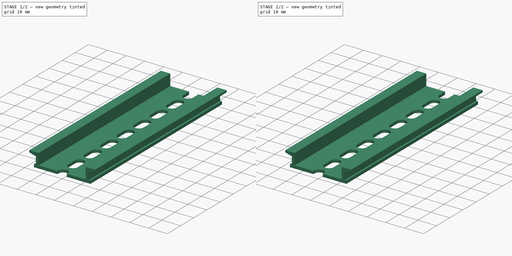
[diagram: build sequence overview — one tinted view per stage of 2, left to right]
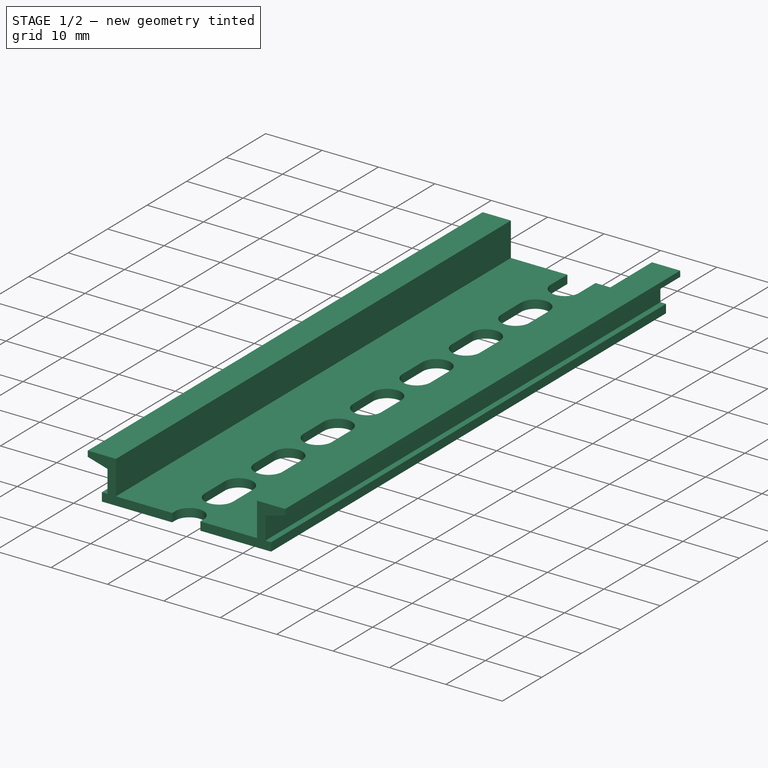
[diagram: stage 1 of 2 — iso view after this stage's code; geometry added in this stage tinted green]
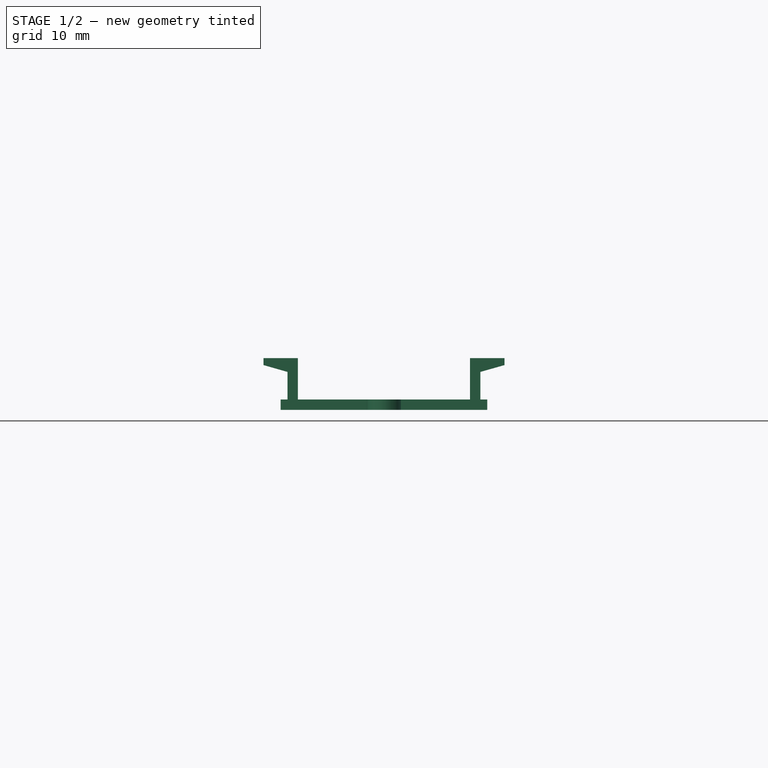
[diagram: stage 1 of 2 — front view after this stage's code; geometry added in this stage tinted green]
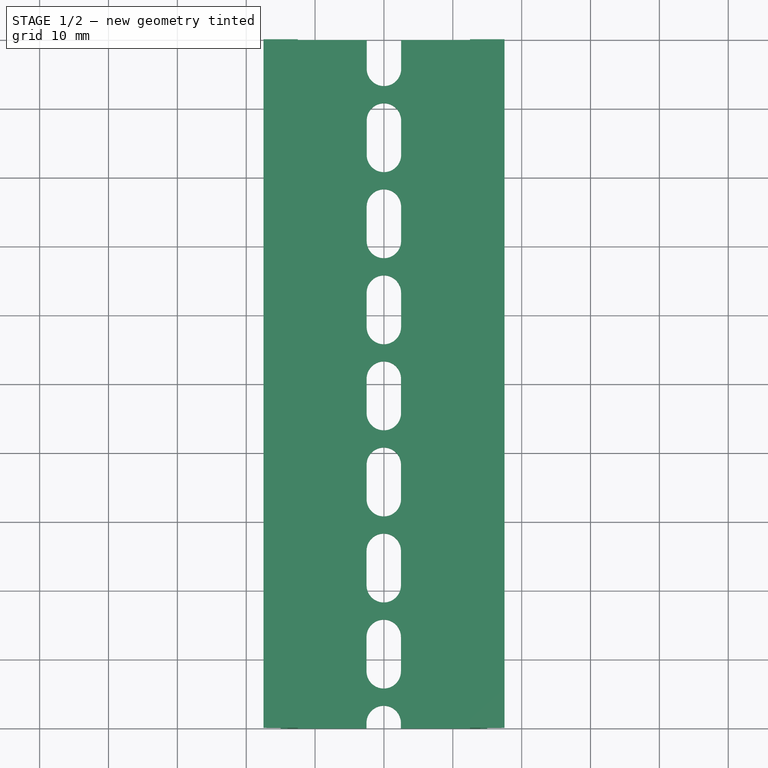
[diagram: stage 1 of 2 — top view after this stage's code; geometry added in this stage tinted green]
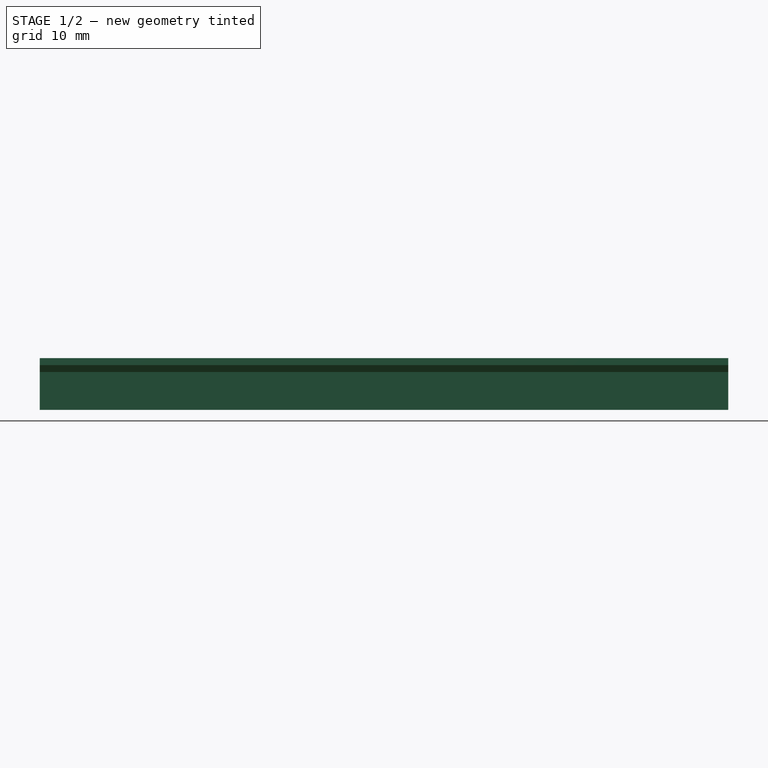
[diagram: stage 1 of 2 — right view after this stage's code; geometry added in this stage tinted green]
FCSTD DOCUMENT  (FreeCAD 0.19R24267 +99 (Git))
Label: DIN35レール100mm
License: All rights reserved
LicenseURL: http://en.wikipedia.org/wiki/All_rights_reserved
objects: Sketcher::SketchObject×2, PartDesign::Pocket×2, PartDesign::Pad×1, PartDesign::Body×1
note: 9 computed .brp shape members not serialized (recipe doc carries the construction recipe); baked Part::Feature solids carry a one-line shape summary decoded from their .brp

FEATURE [Sketcher::SketchObject] Sketch
  FullyConstrained = false
  MapMode = 5
  Placement = pos=(0,0,0) rot=(1,0,0;1.5708rad)
  Support = -> [XZ_Plane]
  sketch-geometry (18):
    g0: LineSegment StartX=0 StartY=0 StartZ=0 EndX=-15 EndY=0 EndZ=0
    g1: LineSegment StartX=-15 StartY=0 StartZ=0 EndX=-15 EndY=1.5 EndZ=0
    g2: LineSegment StartX=-15 StartY=1.5 StartZ=0 EndX=-14 EndY=1.5 EndZ=0
    g3: LineSegment StartX=-14 StartY=1.5 StartZ=0 EndX=-14 EndY=5.5 EndZ=0
    g4: LineSegment StartX=-12.5 StartY=7.5 StartZ=0 EndX=-12.5 EndY=1.5 EndZ=0
    g5: LineSegment StartX=-12.5 StartY=1.5 StartZ=0 EndX=0 EndY=1.5 EndZ=0
    g6: LineSegment StartX=-12.5 StartY=7.5 StartZ=0 EndX=-17.5 EndY=7.5 EndZ=0
    g7: LineSegment StartX=-17.5 StartY=7.5 StartZ=0 EndX=-17.5 EndY=6.5 EndZ=0
    g8: LineSegment StartX=-17.5 StartY=6.5 StartZ=0 EndX=-14 EndY=5.5 EndZ=0
    g9: LineSegment StartX=0 StartY=0 StartZ=0 EndX=15 EndY=0 EndZ=0
    g10: LineSegment StartX=15 StartY=0 StartZ=0 EndX=15 EndY=1.5 EndZ=0
    g11: LineSegment StartX=15 StartY=1.5 StartZ=0 EndX=14 EndY=1.5 EndZ=0
    g12: LineSegment StartX=14 StartY=1.5 StartZ=0 EndX=14 EndY=5.5 EndZ=0
    g13: LineSegment StartX=14 StartY=5.5 StartZ=0 EndX=17.5148 EndY=6.5 EndZ=0
    g14: LineSegment StartX=17.5148 StartY=6.5 StartZ=0 EndX=17.5 EndY=7.5 EndZ=0
    g15: LineSegment StartX=17.5 StartY=7.5 StartZ=0 EndX=12.5 EndY=7.5 EndZ=0
    g16: LineSegment StartX=12.5 StartY=7.5 StartZ=0 EndX=12.5 EndY=1.5 EndZ=0
    g17: LineSegment StartX=12.5 StartY=1.5 StartZ=0 EndX=0 EndY=1.5 EndZ=0
  constraints (52):
    c: Coincident(g0,g-1)
    c: Horizontal(g0)
    c: Coincident(g1,g0)
    c: Coincident(g2,g1)
    c: Horizontal(g2)
    c: Coincident(g3,g2)
    c: Vertical(g3)
    c: Vertical(g4)
    c: Coincident(g5,g4)
    c: PointOnObject(g5,g-2)
    c: Horizontal(g5)
    c: DistanceX(g0,g0) = 15
    c: DistanceY(g1,g1) = 1.5
    c: Angle(g1,g2) = 1.5708
    c: DistanceX(g2,g2) = 1
    c: DistanceY(g3,g3) = 4
    c: DistanceY(g4,g4) = 6
    c: Coincident(g6,g4)
    c: Horizontal(g6)
    c: DistanceX(g2,g4) = 1.5
    c: Coincident(g7,g6)
    c: Vertical(g7)
    c: DistanceY(g7,g7) = 1
    c: DistanceY(g0,g5) = 1.5
    c: Coincident(g8,g7)
    c: Coincident(g8,g3)
    c: DistanceX(g6,g6) = 5
    c: Coincident(g9,g0)
    c: PointOnObject(g9,g-1)
    c: Coincident(g10,g9)
    c: Vertical(g10)
    c: Coincident(g11,g10)
    c: Coincident(g12,g11)
    c: Vertical(g12)
    c: Coincident(g13,g12)
    c: Coincident(g14,g13)
    c: Coincident(g15,g14)
    c: Horizontal(g15)
    c: Coincident(g16,g15)
    c: Vertical(g16)
    c: Coincident(g17,g16)
    c: Coincident(g17,g5)
    c: Horizontal(g17)
    c: DistanceX(g9,g9) = 15
    c: DistanceY(g10,g10) = 1.5
    c: DistanceX(g11,g11) = 1
    c: DistanceY(g16,g16) = 6
    c: DistanceY(g14,g14) = 1
    c: DistanceX(g15,g15) = 5
    c: DistanceX(g16,g11) = 1.5
    c: DistanceY(g12,g12) = 4
    c: Angle(g11,g12) = 1.5708
FEATURE [PartDesign::Pad] Pad
  Direction = (1,1,1)
  Length = 100
  Length2 = 100
  Placement = pos=(0,0,0) rot=(1,0,0;1.5708rad)
  Profile = -> Sketch
  Type = 0
FEATURE [Sketcher::SketchObject] Sketch001
  FullyConstrained = false
  MapMode = 5
  Placement = pos=(0,-3e-16,1.5) rot=(0,0,1;3.14159rad)
  Support = -> [Pad]
  sketch-geometry (49):
    g0: ArcOfCircle CenterX=0 CenterY=4.18763 CenterZ=0 NormalX=0 NormalY=0 NormalZ=1 AngleXU=0 Radius=2.5 StartAngle=1.17e-14 EndAngle=3.14159
    g1: ArcOfCircle CenterX=-1e-16 CenterY=-0.812369 CenterZ=0 NormalX=0 NormalY=0 NormalZ=1 AngleXU=0 Radius=2.5 StartAngle=3.14159 EndAngle=6.28319
    g2: LineSegment StartX=-2.5 StartY=4.18763 StartZ=0 EndX=-2.5 EndY=-0.812369 EndZ=0
    g3: LineSegment StartX=2.5 StartY=4.18763 StartZ=0 EndX=2.5 EndY=-0.812369 EndZ=0
    g4: ArcOfCircle CenterX=0.0046205 CenterY=16.6876 CenterZ=0 NormalX=0 NormalY=0 NormalZ=1 AngleXU=0 Radius=2.5 StartAngle=5.4e-15 EndAngle=3.14159
    g5: ArcOfCircle CenterX=0.0046205 CenterY=11.6876 CenterZ=0 NormalX=0 NormalY=0 NormalZ=1 AngleXU=0 Radius=2.5 StartAngle=3.14159 EndAngle=6.28319
    g6: LineSegment StartX=-2.49538 StartY=16.6876 StartZ=0 EndX=-2.49538 EndY=11.6876 EndZ=0
    g7: LineSegment StartX=2.50462 StartY=16.6876 StartZ=0 EndX=2.50462 EndY=11.6876 EndZ=0
    g8: LineSegment StartX=2.5 StartY=4.18763 StartZ=0 EndX=2.50462 EndY=16.6876 EndZ=0
    g9: ArcOfCircle CenterX=0.00924099 CenterY=29.1876 CenterZ=0 NormalX=0 NormalY=0 NormalZ=1 AngleXU=0 Radius=2.5 StartAngle=0 EndAngle=3.14159
    g10: ArcOfCircle CenterX=0.00924099 CenterY=24.1876 CenterZ=0 NormalX=0 NormalY=0 NormalZ=1 AngleXU=0 Radius=2.5 StartAngle=3.14159 EndAngle=6.28319
    g11: LineSegment StartX=-2.49076 StartY=29.1876 StartZ=0 EndX=-2.49076 EndY=24.1876 EndZ=0
    g12: LineSegment StartX=2.50924 StartY=29.1876 StartZ=0 EndX=2.50924 EndY=24.1876 EndZ=0
    g13: LineSegment StartX=2.50462 StartY=16.6876 StartZ=0 EndX=2.50924 EndY=29.1876 EndZ=0
    g14: ArcOfCircle CenterX=0.0138615 CenterY=41.6876 CenterZ=0 NormalX=0 NormalY=0 NormalZ=1 AngleXU=0 Radius=2.5 StartAngle=0 EndAngle=3.14159
    g15: ArcOfCircle CenterX=0.0138615 CenterY=36.6876 CenterZ=0 NormalX=0 NormalY=0 NormalZ=1 AngleXU=0 Radius=2.5 StartAngle=3.14159 EndAngle=6.28319
    g16: LineSegment StartX=-2.48614 StartY=41.6876 StartZ=0 EndX=-2.48614 EndY=36.6876 EndZ=0
    g17: LineSegment StartX=2.51386 StartY=41.6876 StartZ=0 EndX=2.51386 EndY=36.6876 EndZ=0
    g18: LineSegment StartX=2.50924 StartY=29.1876 StartZ=0 EndX=2.51386 EndY=41.6876 EndZ=0
    g19: ArcOfCircle CenterX=0.018482 CenterY=54.1876 CenterZ=0 NormalX=0 NormalY=0 NormalZ=1 AngleXU=0 Radius=2.5 StartAngle=1.3e-15 EndAngle=3.14159
    g20: ArcOfCircle CenterX=0.018482 CenterY=49.1876 CenterZ=0 NormalX=0 NormalY=0 NormalZ=1 AngleXU=0 Radius=2.5 StartAngle=3.14159 EndAngle=6.28319
    g21: LineSegment StartX=-2.48152 StartY=54.1876 StartZ=0 EndX=-2.48152 EndY=49.1876 EndZ=0
    g22: LineSegment StartX=2.51848 StartY=54.1876 StartZ=0 EndX=2.51848 EndY=49.1876 EndZ=0
    g23: LineSegment StartX=2.51386 StartY=41.6876 StartZ=0 EndX=2.51848 EndY=54.1876 EndZ=0
    g24: ArcOfCircle CenterX=0.0231025 CenterY=66.6876 CenterZ=0 NormalX=0 NormalY=0 NormalZ=1 AngleXU=0 Radius=2.5 StartAngle=4e-16 EndAngle=3.14159
    g25: ArcOfCircle CenterX=0.0231025 CenterY=61.6876 CenterZ=0 NormalX=0 NormalY=0 NormalZ=1 AngleXU=0 Radius=2.5 StartAngle=3.14159 EndAngle=6.28319
    g26: LineSegment StartX=-2.4769 StartY=66.6876 StartZ=0 EndX=-2.4769 EndY=61.6876 EndZ=0
    g27: LineSegment StartX=2.5231 StartY=66.6876 StartZ=0 EndX=2.5231 EndY=61.6876 EndZ=0
    g28: LineSegment StartX=2.51848 StartY=54.1876 StartZ=0 EndX=2.5231 EndY=66.6876 EndZ=0
    g29: ArcOfCircle CenterX=0.027723 CenterY=79.1876 CenterZ=0 NormalX=0 NormalY=0 NormalZ=1 AngleXU=0 Radius=2.5 StartAngle=4e-16 EndAngle=3.14159
    g30: ArcOfCircle CenterX=0.027723 CenterY=74.1876 CenterZ=0 NormalX=0 NormalY=0 NormalZ=1 AngleXU=0 Radius=2.5 StartAngle=3.14159 EndAngle=6.28319
    g31: LineSegment StartX=-2.47228 StartY=79.1876 StartZ=0 EndX=-2.47228 EndY=74.1876 EndZ=0
    g32: LineSegment StartX=2.52772 StartY=79.1876 StartZ=0 EndX=2.52772 EndY=74.1876 EndZ=0
    g33: LineSegment StartX=2.5231 StartY=66.6876 StartZ=0 EndX=2.52772 EndY=79.1876 EndZ=0
    g34: ArcOfCircle CenterX=0.0323435 CenterY=91.6876 CenterZ=0 NormalX=0 NormalY=0 NormalZ=1 AngleXU=0 Radius=2.5 StartAngle=4e-16 EndAngle=3.14159
    g35: ArcOfCircle CenterX=0.0323435 CenterY=86.6876 CenterZ=0 NormalX=0 NormalY=0 NormalZ=1 AngleXU=0 Radius=2.5 StartAngle=3.14159 EndAngle=6.28319
    g36: LineSegment StartX=-2.46766 StartY=91.6876 StartZ=0 EndX=-2.46766 EndY=86.6876 EndZ=0
    g37: LineSegment StartX=2.53234 StartY=91.6876 StartZ=0 EndX=2.53234 EndY=86.6876 EndZ=0
    g38: LineSegment StartX=2.52772 StartY=79.1876 StartZ=0 EndX=2.53234 EndY=91.6876 EndZ=0
    g39: ArcOfCircle CenterX=0.036964 CenterY=104.188 CenterZ=0 NormalX=0 NormalY=0 NormalZ=1 AngleXU=0 Radius=2.5 StartAngle=-1.8e-15 EndAngle=3.14159
    g40: ArcOfCircle CenterX=0.036964 CenterY=99.1876 CenterZ=0 NormalX=0 NormalY=0 NormalZ=1 AngleXU=0 Radius=2.5 StartAngle=3.14159 EndAngle=6.28319
    g41: LineSegment StartX=-2.46304 StartY=104.188 StartZ=0 EndX=-2.46304 EndY=99.1876 EndZ=0
    g42: LineSegment StartX=2.53696 StartY=104.188 StartZ=0 EndX=2.53696 EndY=99.1876 EndZ=0
    g43: LineSegment StartX=2.53234 StartY=91.6876 StartZ=0 EndX=2.53696 EndY=104.188 EndZ=0
    g44: ArcOfCircle CenterX=0.0415845 CenterY=116.688 CenterZ=0 NormalX=0 NormalY=0 NormalZ=1 AngleXU=0 Radius=2.5 StartAngle=1.1e-15 EndAngle=3.14159
    g45: ArcOfCircle CenterX=0.0415845 CenterY=111.688 CenterZ=0 NormalX=0 NormalY=0 NormalZ=1 AngleXU=0 Radius=2.5 StartAngle=3.14159 EndAngle=6.28319
    g46: LineSegment StartX=-2.45842 StartY=116.688 StartZ=0 EndX=-2.45842 EndY=111.688 EndZ=0
    g47: LineSegment StartX=2.54158 StartY=116.688 StartZ=0 EndX=2.54158 EndY=111.688 EndZ=0
    g48: LineSegment StartX=2.53696 StartY=104.188 StartZ=0 EndX=2.54158 EndY=116.688 EndZ=0
  constraints (117):
    c: Tangent(g0,g3) = 1.5708
    c: Tangent(g0,g2) = -1.5708
    c: Tangent(g2,g1) = -1.5708
    c: Tangent(g3,g1) = 1.5708
    c: Vertical(g2)
    c: Equal(g0,g1)
    c: Radius(g0) = 2.5
    c: DistanceY(g3,g3) = 5
    c: PointOnObject(g0,g-2)
    c: Tangent(g4,g7) = 1.5708
    c: Tangent(g4,g6) = -1.5708
    c: Tangent(g6,g5) = -1.5708
    c: Tangent(g7,g5) = 1.5708
    c: Vertical(g6)
    c: Equal(g4,g5)
    c: Radius(g4) = 2.5
    c: DistanceY(g7,g7) = 5
    c: Coincident(g0,g8)
    c: Coincident(g4,g8)
    c: Distance(g8) = 12.5
    c: Angle(g8) = 1.57043
    c: Tangent(g9,g12) = 1.5708
    c: Tangent(g9,g11) = -1.5708
    c: Tangent(g11,g10) = -1.5708
    c: Tangent(g12,g10) = 1.5708
    c: Vertical(g11)
    c: Equal(g9,g10)
    c: Radius(g9) = 2.5
    c: DistanceY(g12,g12) = 5
    c: Coincident(g4,g13)
    c: Coincident(g9,g13)
    c: Equal(g8,g13)
    c: Parallel(g13,g8)
    c: Tangent(g14,g17) = 1.5708
    c: Tangent(g14,g16) = -1.5708
    c: Tangent(g16,g15) = -1.5708
    c: Tangent(g17,g15) = 1.5708
    c: Vertical(g16)
    c: Equal(g14,g15)
    c: Radius(g14) = 2.5
    c: DistanceY(g17,g17) = 5
    c: Coincident(g9,g18)
    c: Coincident(g14,g18)
    c: Equal(g8,g18)
    c: Parallel(g18,g8)
    c: Tangent(g19,g22) = 1.5708
    c: Tangent(g19,g21) = -1.5708
    c: Tangent(g21,g20) = -1.5708
    c: Tangent(g22,g20) = 1.5708
    c: Vertical(g21)
    c: Equal(g19,g20)
    c: Radius(g19) = 2.5
    c: DistanceY(g22,g22) = 5
    c: Coincident(g14,g23)
    c: Coincident(g19,g23)
    c: Equal(g8,g23)
    c: Parallel(g23,g8)
    c: Tangent(g24,g27) = 1.5708
    c: Tangent(g24,g26) = -1.5708
    c: Tangent(g26,g25) = -1.5708
    c: Tangent(g27,g25) = 1.5708
    c: Vertical(g26)
    c: Equal(g24,g25)
    c: Radius(g24) = 2.5
    c: DistanceY(g27,g27) = 5
    c: Coincident(g19,g28)
    c: Coincident(g24,g28)
    c: Equal(g8,g28)
    c: Parallel(g28,g8)
    c: Tangent(g29,g32) = 1.5708
    c: Tangent(g29,g31) = -1.5708
    c: Tangent(g31,g30) = -1.5708
    c: Tangent(g32,g30) = 1.5708
    c: Vertical(g31)
    c: Equal(g29,g30)
    c: Radius(g29) = 2.5
    c: DistanceY(g32,g32) = 5
    c: Coincident(g24,g33)
    c: Coincident(g29,g33)
    c: Equal(g8,g33)
    c: Parallel(g33,g8)
    c: Tangent(g34,g37) = 1.5708
    c: Tangent(g34,g36) = -1.5708
    c: Tangent(g36,g35) = -1.5708
    c: Tangent(g37,g35) = 1.5708
    c: Vertical(g36)
    c: Equal(g34,g35)
    c: Radius(g34) = 2.5
    c: DistanceY(g37,g37) = 5
    c: Coincident(g29,g38)
    c: Coincident(g34,g38)
    c: Equal(g8,g38)
    c: Parallel(g38,g8)
    c: Tangent(g39,g42) = 1.5708
    c: Tangent(g39,g41) = -1.5708
    c: Tangent(g41,g40) = -1.5708
    c: Tangent(g42,g40) = 1.5708
    c: Vertical(g41)
    c: Equal(g39,g40)
    c: Radius(g39) = 2.5
    c: DistanceY(g42,g42) = 5
    c: Coincident(g34,g43)
    c: Coincident(g39,g43)
    c: Equal(g8,g43)
    c: Parallel(g43,g8)
    c: Tangent(g44,g47) = 1.5708
    c: Tangent(g44,g46) = -1.5708
    c: Tangent(g46,g45) = -1.5708
    c: Tangent(g47,g45) = 1.5708
    c: Vertical(g46)
    c: Equal(g44,g45)
    c: Radius(g44) = 2.5
    c: DistanceY(g47,g47) = 5
    c: Coincident(g39,g48)
    c: Coincident(g44,g48)
    c: Equal(g8,g48)
    c: Parallel(g48,g8)
FEATURE [PartDesign::Pocket] Pocket
  BaseFeature = -> Pad
  Length = 2
  Length2 = 100
  Placement = pos=(0,0,0) rot=(1,0,0;1.5708rad)
  Profile = -> Sketch001
  Type = 0
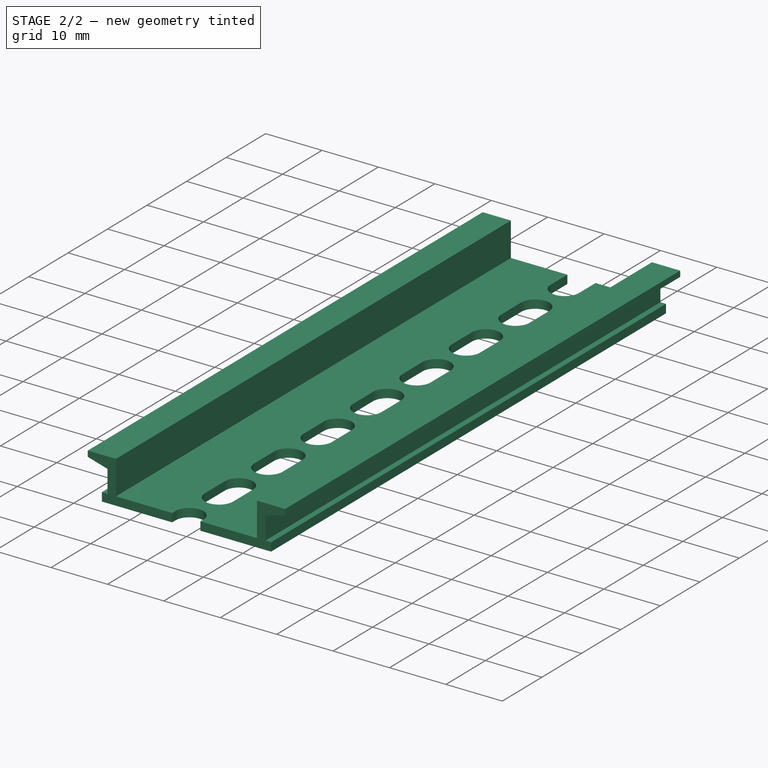
[diagram: stage 2 of 2 — iso view after this stage's code; geometry added in this stage tinted green]
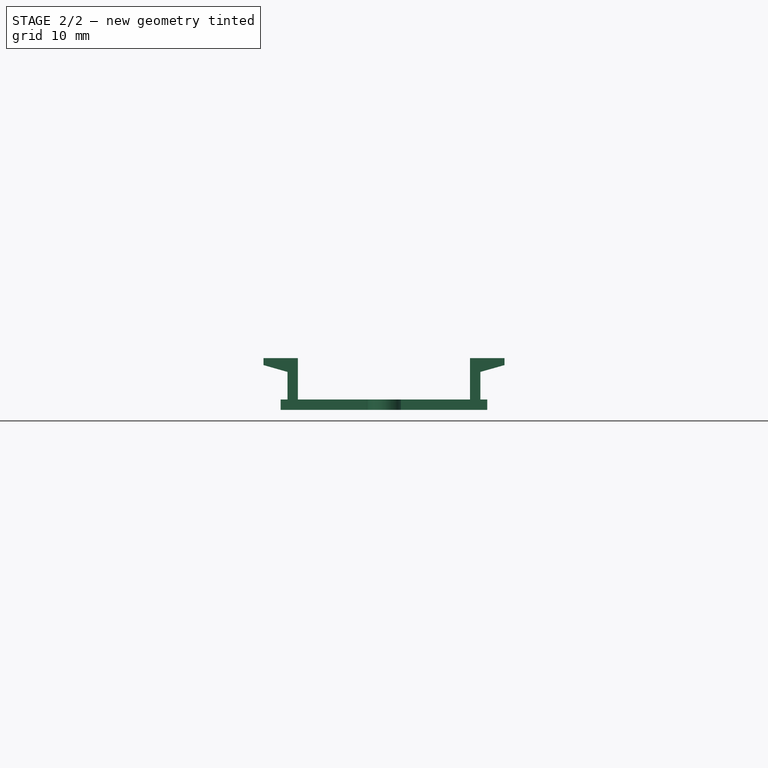
[diagram: stage 2 of 2 — front view after this stage's code; geometry added in this stage tinted green]
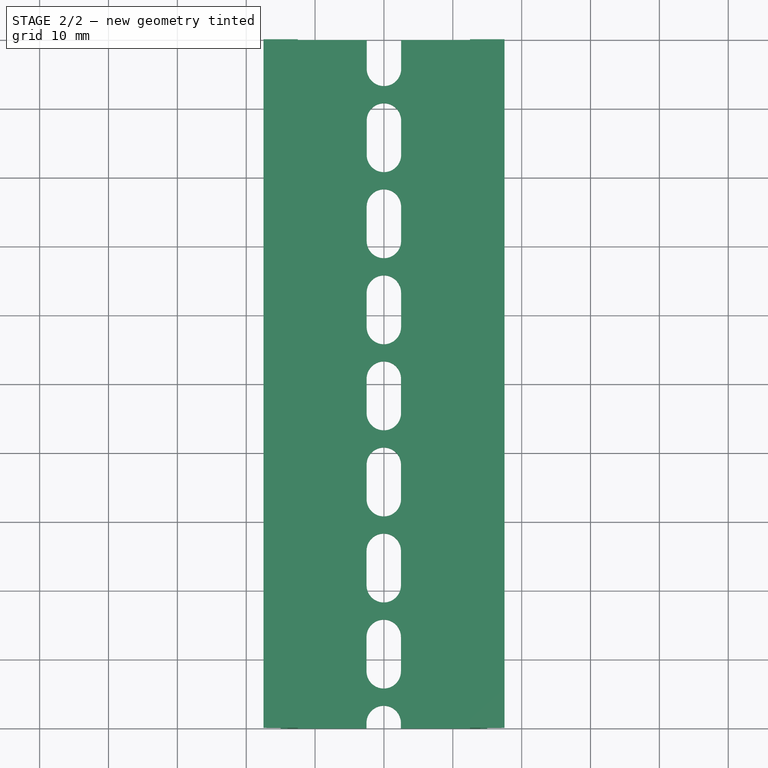
[diagram: stage 2 of 2 — top view after this stage's code; geometry added in this stage tinted green]
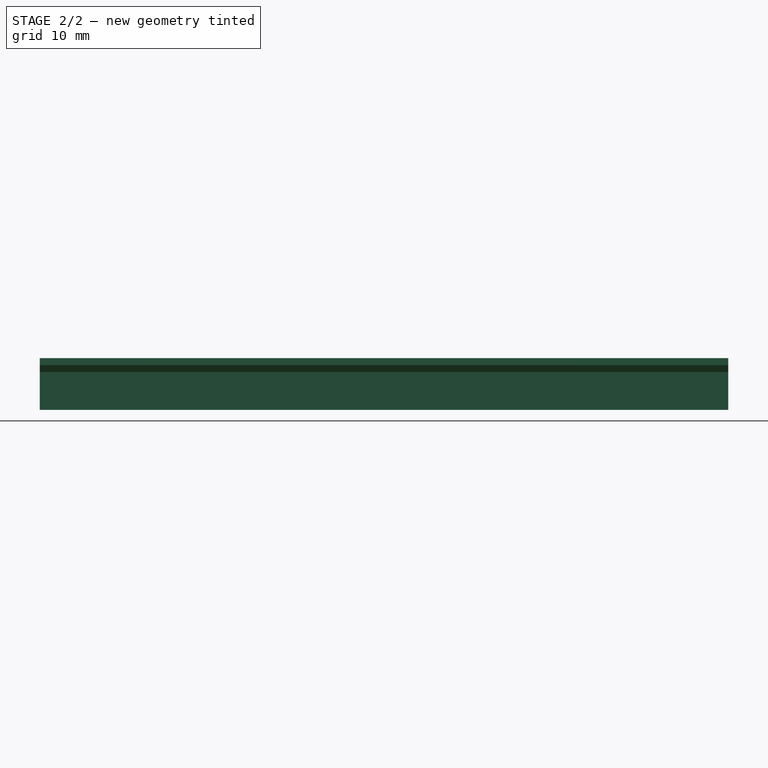
[diagram: stage 2 of 2 — right view after this stage's code; geometry added in this stage tinted green]
FEATURE [PartDesign::Pocket] Pocket001
  BaseFeature = -> Pocket
  Length = 3
  Length2 = 100
  Placement = pos=(0,0,0) rot=(1,0,0;1.5708rad)
  Profile = -> Sketch001
  Type = 0
FEATURE [PartDesign::Body] Body
  Group = -> [Sketch,Pad,Sketch001,Pocket,Pocket001]
  Origin = -> Origin
  Tip = -> Pocket001
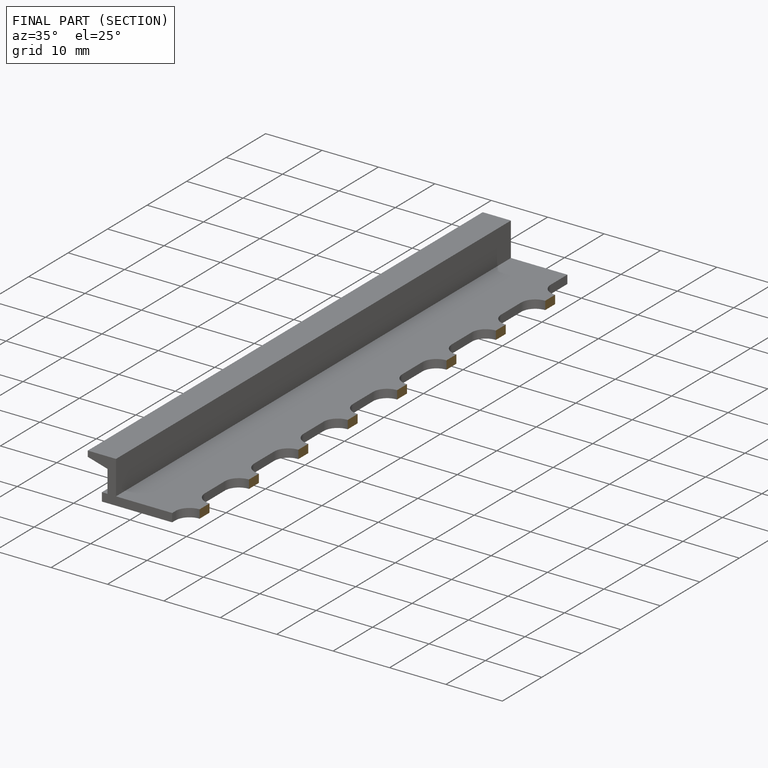
[diagram: finished part — half-section view (interior)]
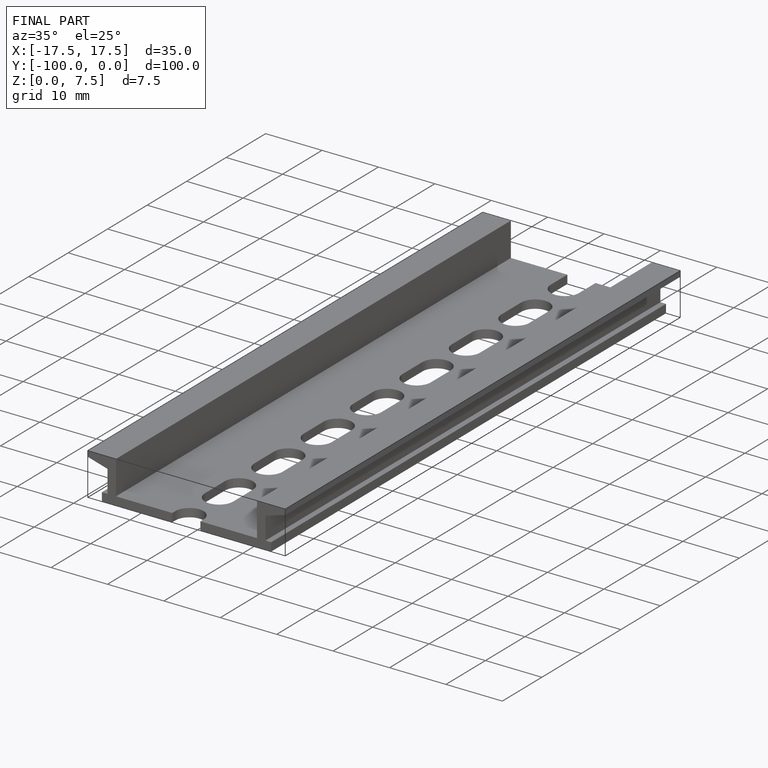
[diagram: finished part — iso view with bounding-box wireframe]
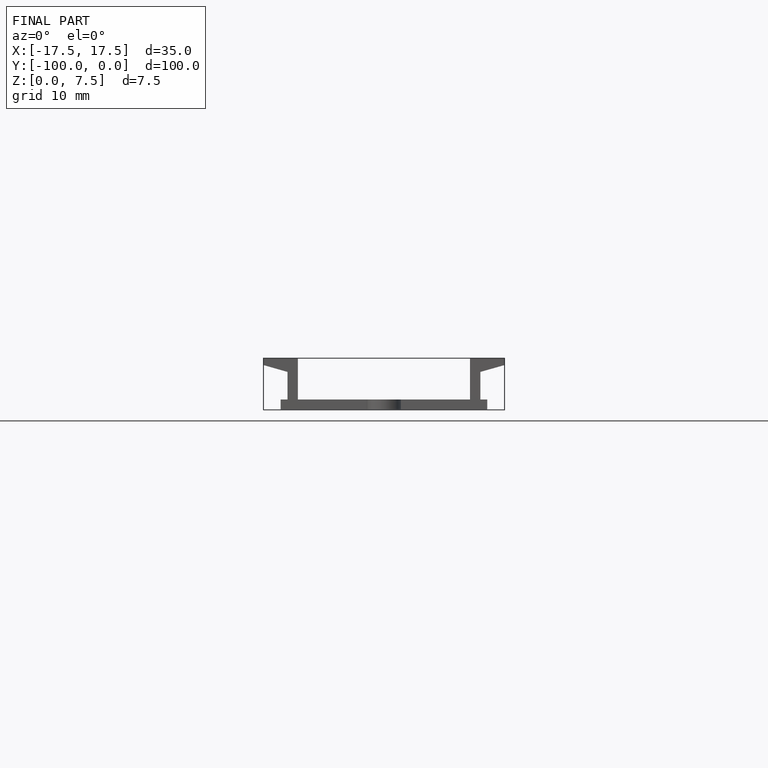
[diagram: finished part — front view with bounding-box wireframe]
